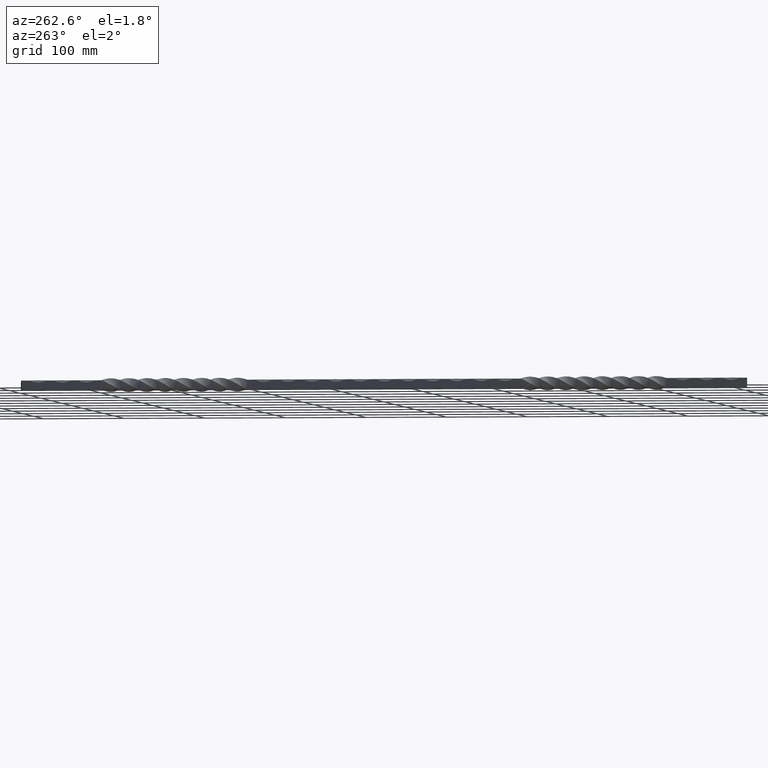
[diagram: clean part render]
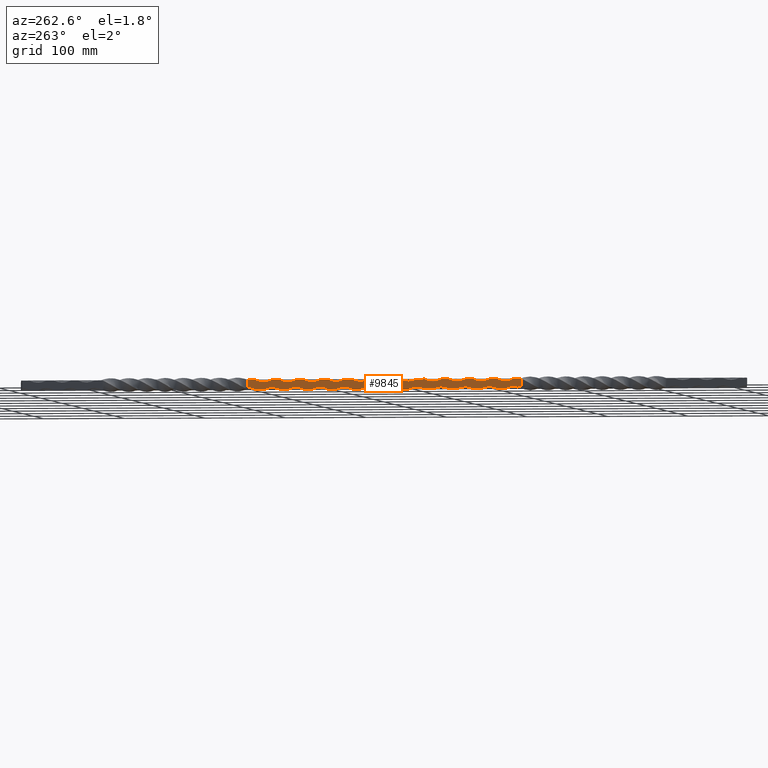
[diagram: same view with one face highlighted and labeled with its STEP entity id]
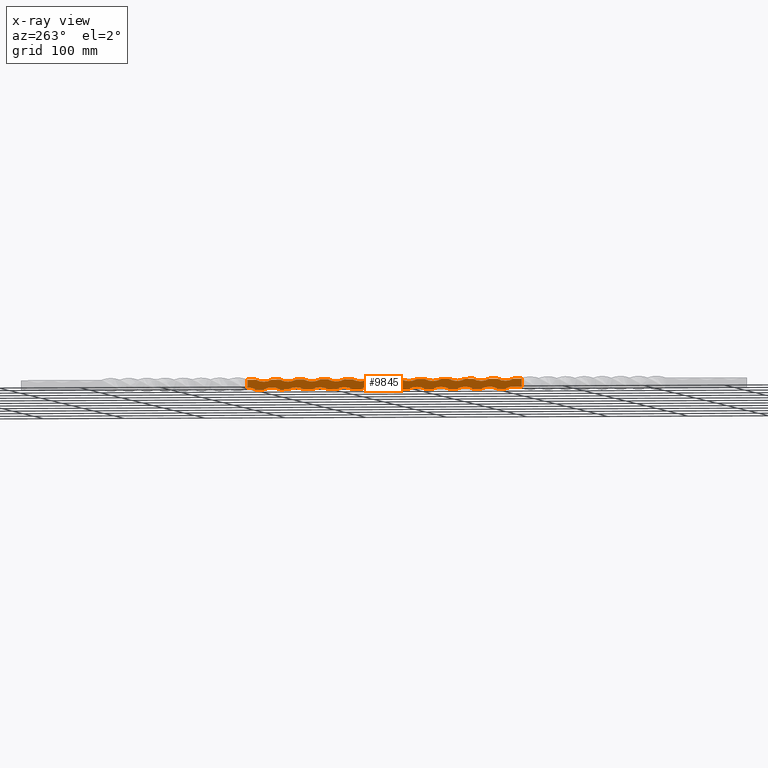
[diagram: x-ray of the same camera — body ghosted, the highlighted face saturated]
A machine part, auxiliary view. The second image highlights one B-rep face of the part: STEP entity #9845.
The next image is the same camera in x-ray: the body ghosted, the highlighted face saturated — about 0% of this face is hidden behind the body in this view.
In plain terms, the highlighted planar face has unit normal (1, -0, 0).
Its self-contained STEP definition (entity closure, byte-faithful):
#56 = EDGE_CURVE ( 'NONE', #10044, #6111, #5525, .T. ) ;
#104 = EDGE_CURVE ( 'NONE', #3946, #1609, #8206, .T. ) ;
#119 = DIRECTION ( 'NONE',  ( -1.000000000000000000, 0.000000000000000000, -8.223997290526212661E-10 ) ) ;
#127 = DIRECTION ( 'NONE',  ( 8.223997463422359686E-10, -5.224578939412520671E-15, -1.000000000000000000 ) ) ;
#130 = VECTOR ( 'NONE', #2162, 1000.000000000000000 ) ;
#161 = VECTOR ( 'NONE', #4154, 1000.000000000000000 ) ;
#187 = AXIS2_PLACEMENT_3D ( 'NONE', #1752, #8763, #4424 ) ;
#253 = VERTEX_POINT ( 'NONE', #7351 ) ;
#290 = CARTESIAN_POINT ( 'NONE',  ( -6.000000006995538371, 79.99999999999997158, 5.999999997126758799 ) ) ;
#384 = AXIS2_PLACEMENT_3D ( 'NONE', #4113, #10153, #127 ) ;
#390 = ORIENTED_EDGE ( 'NONE', *, *, #8853, .F. ) ;
#431 = AXIS2_PLACEMENT_3D ( 'NONE', #9084, #10975, #4958 ) ;
#478 = VERTEX_POINT ( 'NONE', #9252 ) ;
#530 = EDGE_CURVE ( 'NONE', #613, #3887, #2408, .T. ) ;
#558 = DIRECTION ( 'NONE',  ( 8.223997463422361754E-10, 1.795949010423054375E-15, -1.000000000000000000 ) ) ;
#612 = DIRECTION ( 'NONE',  ( -1.000000000000000000, 0.000000000000000000, -8.223997290526212661E-10 ) ) ;
#613 = VERTEX_POINT ( 'NONE', #10343 ) ;
#640 = DIRECTION ( 'NONE',  ( -0.000000000000000000, -1.000000000000000000, -0.000000000000000000 ) ) ;
#651 = VECTOR ( 'NONE', #4294, 1000.000000000000000 ) ;
#698 = ORIENTED_EDGE ( 'NONE', *, *, #9775, .F. ) ;
#882 = DIRECTION ( 'NONE',  ( -0.000000000000000000, -1.000000000000000000, -0.000000000000000000 ) ) ;
#927 = VECTOR ( 'NONE', #10280, 1000.000000000000000 ) ;
#1032 = EDGE_CURVE ( 'NONE', #6638, #8643, #4417, .T. ) ;
#1035 = VERTEX_POINT ( 'NONE', #2418 ) ;
#1046 = CARTESIAN_POINT ( 'NONE',  ( -5.999999978209284102, -40.00000000000002132, -24.75000000637097486 ) ) ;
#1051 = ORIENTED_EDGE ( 'NONE', *, *, #6824, .F. ) ;
#1054 = EDGE_CURVE ( 'NONE', #9387, #1757, #1754, .T. ) ;
#1088 = ORIENTED_EDGE ( 'NONE', *, *, #10611, .T. ) ;
#1139 = CARTESIAN_POINT ( 'NONE',  ( -5.999999997126742812, 16.97056276331698754, -6.000000006995589885 ) ) ;
#1144 = AXIS2_PLACEMENT_3D ( 'NONE', #3574, #9526, #558 ) ;
#1149 = CIRCLE ( 'NONE', #9196, 21.24999999999991473 ) ;
#1154 = CARTESIAN_POINT ( 'NONE',  ( -6.000000006995539259, -130.0000000000000568, 5.999999997126766793 ) ) ;
#1174 = DIRECTION ( 'NONE',  ( 8.223997463422360720E-10, 0.000000000000000000, -1.000000000000000000 ) ) ;
#1182 = ORIENTED_EDGE ( 'NONE', *, *, #11530, .F. ) ;
#1190 = LINE ( 'NONE', #5851, #1516 ) ;
#1200 = DIRECTION ( 'NONE',  ( 1.000000000000000000, -0.000000000000000000, 8.223997290526212661E-10 ) ) ;
#1204 = EDGE_CURVE ( 'NONE', #12863, #253, #1599, .T. ) ;
#1259 = CIRCLE ( 'NONE', #5915, 21.24999999999991118 ) ;
#1287 = CARTESIAN_POINT ( 'NONE',  ( -6.000000022415535206, -120.0000000000000568, 24.74999999712667886 ) ) ;
#1339 = DIRECTION ( 'NONE',  ( 8.223997463422361754E-10, 2.612289469706261124E-15, -1.000000000000000000 ) ) ;
#1358 = LINE ( 'NONE', #4734, #11695 ) ;
#1386 = CARTESIAN_POINT ( 'NONE',  ( -5.999999997126742812, 16.97056276331698754, -6.000000006995589885 ) ) ;
#1419 = ORIENTED_EDGE ( 'NONE', *, *, #4253, .T. ) ;
#1431 = CARTESIAN_POINT ( 'NONE',  ( -5.999999997126741036, 150.0000000065581673, -6.000000006370976635 ) ) ;
#1433 = CARTESIAN_POINT ( 'NONE',  ( -6.000000006995539259, 16.97056276331698754, 5.999999997126768569 ) ) ;
#1435 = VERTEX_POINT ( 'NONE', #5710 ) ;
#1451 = EDGE_CURVE ( 'NONE', #10134, #613, #2727, .T. ) ;
#1476 = CARTESIAN_POINT ( 'NONE',  ( -5.999999978209362261, -100.0000000000000142, -24.75000000637101039 ) ) ;
#1478 = AXIS2_PLACEMENT_3D ( 'NONE', #1046, #3991, #2911 ) ;
#1516 = VECTOR ( 'NONE', #6772, 1000.000000000000000 ) ;
#1525 = VERTEX_POINT ( 'NONE', #5106 ) ;
#1599 = CIRCLE ( 'NONE', #1926, 21.24999999999992184 ) ;
#1609 = VERTEX_POINT ( 'NONE', #3432 ) ;
#1615 = CARTESIAN_POINT ( 'NONE',  ( -6.000000006995540147, 39.99999999999997868, 5.999999997126761464 ) ) ;
#1621 = EDGE_CURVE ( 'NONE', #6087, #9137, #12109, .T. ) ;
#1627 = EDGE_CURVE ( 'NONE', #11043, #11475, #5374, .T. ) ;
#1635 = DIRECTION ( 'NONE',  ( -1.000000000000000000, 0.000000000000000000, -8.223997290526212661E-10 ) ) ;
#1664 = EDGE_CURVE ( 'NONE', #6318, #8234, #10394, .T. ) ;
#1714 = EDGE_CURVE ( 'NONE', #9498, #12953, #2087, .T. ) ;
#1752 = CARTESIAN_POINT ( 'NONE',  ( -5.999999978209440421, -160.0000000000000284, -24.75000000637103525 ) ) ;
#1754 = CIRCLE ( 'NONE', #10992, 21.24999999999992184 ) ;
#1757 = VERTEX_POINT ( 'NONE', #11288 ) ;
#1836 = CARTESIAN_POINT ( 'NONE',  ( -5.999999997126741036, 90.00000000655801102, -6.000000006371007721 ) ) ;
#1859 = CIRCLE ( 'NONE', #4339, 21.24999999999991473 ) ;
#1901 = LINE ( 'NONE', #8338, #5814 ) ;
#1926 = AXIS2_PLACEMENT_3D ( 'NONE', #9005, #5152, #11097 ) ;
#1997 = ORIENTED_EDGE ( 'NONE', *, *, #10972, .F. ) ;
#2034 = CARTESIAN_POINT ( 'NONE',  ( -5.999999997126741036, 6.557801177087263511E-09, -6.000000006371054795 ) ) ;
#2071 = VECTOR ( 'NONE', #3409, 1000.000000000000000 ) ;
#2087 = CIRCLE ( 'NONE', #11565, 21.24999999999991118 ) ;
#2112 = CARTESIAN_POINT ( 'NONE',  ( -5.999999978209166862, 49.99999999999997158, -24.75000000637092867 ) ) ;
#2162 = DIRECTION ( 'NONE',  ( -0.000000000000000000, -1.000000000000000000, -0.000000000000000000 ) ) ;
#2223 = ORIENTED_EDGE ( 'NONE', *, *, #10299, .F. ) ;
#2346 = VECTOR ( 'NONE', #5626, 1000.000000000000000 ) ;
#2403 = EDGE_CURVE ( 'NONE', #9498, #11475, #1901, .T. ) ;
#2408 = LINE ( 'NONE', #12223, #3186 ) ;
#2418 = CARTESIAN_POINT ( 'NONE',  ( -5.999999993629240080, -20.00000000000001776, -6.000000006371043249 ) ) ;
#2533 = ORIENTED_EDGE ( 'NONE', *, *, #56, .T. ) ;
#2601 = CARTESIAN_POINT ( 'NONE',  ( -6.000000022415535206, -150.0000000000000284, 24.74999999712668242 ) ) ;
#2611 = CARTESIAN_POINT ( 'NONE',  ( -5.999999978209049623, 139.9999999999999716, -24.75000000637088249 ) ) ;
#2637 = CARTESIAN_POINT ( 'NONE',  ( -5.999999995194782443, -164.9999999999996589, -4.096610454048146721 ) ) ;
#2651 = ORIENTED_EDGE ( 'NONE', *, *, #11463, .F. ) ;
#2692 = CARTESIAN_POINT ( 'NONE',  ( -6.000000006995541035, -80.00000000000001421, 5.999999997126766793 ) ) ;
#2708 = CARTESIAN_POINT ( 'NONE',  ( -6.000000006995539259, 169.9999999999999716, 5.999999997126768569 ) ) ;
#2727 = CIRCLE ( 'NONE', #9061, 21.24999999999992184 ) ;
#2744 = ORIENTED_EDGE ( 'NONE', *, *, #1451, .F. ) ;
#2786 = VERTEX_POINT ( 'NONE', #7732 ) ;
#2792 = VERTEX_POINT ( 'NONE', #2637 ) ;
#2871 = VERTEX_POINT ( 'NONE', #4934 ) ;
#2911 = DIRECTION ( 'NONE',  ( 8.223997463422361754E-10, 0.000000000000000000, -1.000000000000000000 ) ) ;
#2967 = VERTEX_POINT ( 'NONE', #11274 ) ;
#2998 = VERTEX_POINT ( 'NONE', #6198 ) ;
#3010 = VERTEX_POINT ( 'NONE', #5241 ) ;
#3081 = DIRECTION ( 'NONE',  ( -0.000000000000000000, -1.000000000000000000, -0.000000000000000000 ) ) ;
#3126 = DIRECTION ( 'NONE',  ( 8.223997463422359686E-10, -5.224578939412520671E-15, -1.000000000000000000 ) ) ;
#3133 = ORIENTED_EDGE ( 'NONE', *, *, #4799, .F. ) ;
#3186 = VECTOR ( 'NONE', #6356, 1000.000000000000000 ) ;
#3201 = VERTEX_POINT ( 'NONE', #2034 ) ;
#3234 = EDGE_CURVE ( 'NONE', #2786, #1435, #6585, .T. ) ;
#3316 = CARTESIAN_POINT ( 'NONE',  ( -5.999999993629201001, 9.999999999999980460, -6.000000006371028149 ) ) ;
#3365 = CARTESIAN_POINT ( 'NONE',  ( -5.999999997126741036, -59.99999999344233714, -6.000000006371085881 ) ) ;
#3409 = DIRECTION ( 'NONE',  ( -0.000000000000000000, -1.000000000000000000, -0.000000000000000000 ) ) ;
#3432 = CARTESIAN_POINT ( 'NONE',  ( -6.000000006995538371, 109.9999999999999716, 5.999999997126757023 ) ) ;
#3486 = EDGE_CURVE ( 'NONE', #12070, #9387, #10984, .T. ) ;
#3574 = CARTESIAN_POINT ( 'NONE',  ( -5.999999978209245022, -10.00000000000002487, -24.75000000637096065 ) ) ;
#3596 = EDGE_LOOP ( 'NONE', ( #1997, #10210, #9760, #6856, #12129, #7724, #6258, #390, #5331, #4366, #9149, #5382, #1051, #4666, #8829, #6580, #10459, #2744, #4830, #698, #3133, #8042, #5319, #3813, #7268, #13003, #3720, #12424, #10285, #7205, #2651, #10838, #4120, #1088, #5269, #2533, #5564, #9154, #1182, #12322, #9771, #8380, #2223, #11356, #3865, #1419, #12305, #12490, #8264 ) ) ;
#3603 = CIRCLE ( 'NONE', #1144, 21.24999999999991473 ) ;
#3607 = VERTEX_POINT ( 'NONE', #4649 ) ;
#3720 = ORIENTED_EDGE ( 'NONE', *, *, #1714, .F. ) ;
#3749 = LINE ( 'NONE', #3932, #11427 ) ;
#3754 = EDGE_CURVE ( 'NONE', #10044, #7766, #9093, .T. ) ;
#3813 = ORIENTED_EDGE ( 'NONE', *, *, #1054, .F. ) ;
#3860 = CARTESIAN_POINT ( 'NONE',  ( -6.000000006995539259, 159.9999999999999716, 5.999999997126756135 ) ) ;
#3865 = ORIENTED_EDGE ( 'NONE', *, *, #11593, .F. ) ;
#3878 = EDGE_CURVE ( 'NONE', #9137, #3607, #7207, .T. ) ;
#3887 = VERTEX_POINT ( 'NONE', #1615 ) ;
#3915 = CIRCLE ( 'NONE', #12386, 21.24999999999991473 ) ;
#3932 = CARTESIAN_POINT ( 'NONE',  ( -5.999999997126742812, 16.97056276331698754, -6.000000006995589885 ) ) ;
#3946 = VERTEX_POINT ( 'NONE', #6641 ) ;
#3991 = DIRECTION ( 'NONE',  ( -1.000000000000000000, 0.000000000000000000, -8.223997290526212661E-10 ) ) ;
#3997 = EDGE_CURVE ( 'NONE', #3010, #6402, #9248, .T. ) ;
#4000 = VECTOR ( 'NONE', #12826, 1000.000000000000000 ) ;
#4026 = CARTESIAN_POINT ( 'NONE',  ( -5.999999993629357320, -110.0000000000000142, -6.000000006371090322 ) ) ;
#4041 = CARTESIAN_POINT ( 'NONE',  ( -5.999999997126742812, 16.97056276331698754, -6.000000006995589885 ) ) ;
#4113 = CARTESIAN_POINT ( 'NONE',  ( -6.000000022415533429, 119.9999999999999716, 24.74999999712666821 ) ) ;
#4120 = ORIENTED_EDGE ( 'NONE', *, *, #9041, .F. ) ;
#4121 = DIRECTION ( 'NONE',  ( -1.000000000000000000, 0.000000000000000000, -8.223997290526212661E-10 ) ) ;
#4139 = EDGE_CURVE ( 'NONE', #11043, #2871, #3749, .T. ) ;
#4150 = EDGE_CURVE ( 'NONE', #478, #1525, #4692, .T. ) ;
#4154 = DIRECTION ( 'NONE',  ( -0.000000000000000000, -1.000000000000000000, -0.000000000000000000 ) ) ;
#4165 = CARTESIAN_POINT ( 'NONE',  ( -5.999999993629279160, -50.00000000000001421, -6.000000006371059236 ) ) ;
#4253 = EDGE_CURVE ( 'NONE', #9476, #7193, #9702, .T. ) ;
#4283 = CARTESIAN_POINT ( 'NONE',  ( -5.999999978209088702, 109.9999999999999716, -24.75000000637089670 ) ) ;
#4293 = CARTESIAN_POINT ( 'NONE',  ( -5.999999978209036300, -169.9999999999999432, -24.75000000637087183 ) ) ;
#4294 = DIRECTION ( 'NONE',  ( -0.000000000000000000, -1.000000000000000000, -0.000000000000000000 ) ) ;
#4305 = DIRECTION ( 'NONE',  ( -0.000000000000000000, -1.000000000000000000, -0.000000000000000000 ) ) ;
#4339 = AXIS2_PLACEMENT_3D ( 'NONE', #11868, #4784, #11737 ) ;
#4366 = ORIENTED_EDGE ( 'NONE', *, *, #9502, .F. ) ;
#4369 = VECTOR ( 'NONE', #8451, 1000.000000000000000 ) ;
#4417 = LINE ( 'NONE', #1386, #2071 ) ;
#4424 = DIRECTION ( 'NONE',  ( 8.223997463422361754E-10, -1.306144734853130562E-15, -1.000000000000000000 ) ) ;
#4505 = VERTEX_POINT ( 'NONE', #7884 ) ;
#4519 = DIRECTION ( 'NONE',  ( -0.000000000000000000, -1.000000000000000000, -0.000000000000000000 ) ) ;
#4553 = CARTESIAN_POINT ( 'NONE',  ( -6.000000006995539259, 16.97056276331698754, 5.999999997126768569 ) ) ;
#4576 = DIRECTION ( 'NONE',  ( -1.000000000000000000, 0.000000000000000000, -8.223997290526212661E-10 ) ) ;
#4649 = CARTESIAN_POINT ( 'NONE',  ( -6.000000006995539259, -160.0000000000000284, 5.999999997126768569 ) ) ;
#4666 = ORIENTED_EDGE ( 'NONE', *, *, #4150, .F. ) ;
#4678 = DIRECTION ( 'NONE',  ( -0.000000000000000000, -1.000000000000000000, -0.000000000000000000 ) ) ;
#4692 = CIRCLE ( 'NONE', #6487, 21.24999999999992184 ) ;
#4725 = EDGE_CURVE ( 'NONE', #7948, #478, #11258, .T. ) ;
#4734 = CARTESIAN_POINT ( 'NONE',  ( -5.999999997126742812, 16.97056276331698754, -6.000000006995589885 ) ) ;
#4760 = CARTESIAN_POINT ( 'NONE',  ( -6.000000006995539259, 16.97056276331698754, 5.999999997126768569 ) ) ;
#4784 = DIRECTION ( 'NONE',  ( -1.000000000000000000, 0.000000000000000000, -8.223997290526212661E-10 ) ) ;
#4797 = AXIS2_PLACEMENT_3D ( 'NONE', #2601, #7490, #8640 ) ;
#4799 = EDGE_CURVE ( 'NONE', #1609, #7338, #4845, .T. ) ;
#4830 = ORIENTED_EDGE ( 'NONE', *, *, #6654, .F. ) ;
#4845 = LINE ( 'NONE', #4760, #2346 ) ;
#4914 = DIRECTION ( 'NONE',  ( -1.000000000000000000, 0.000000000000000000, -8.223997290526212661E-10 ) ) ;
#4934 = CARTESIAN_POINT ( 'NONE',  ( -5.999999997126744589, 120.0000000065580963, -6.000000006370992622 ) ) ;
#4958 = DIRECTION ( 'NONE',  ( 8.223997463422359686E-10, -5.224578939412520671E-15, -1.000000000000000000 ) ) ;
#5057 = CARTESIAN_POINT ( 'NONE',  ( -5.999999997126744589, -29.99999999344226609, -6.000000006371070782 ) ) ;
#5069 = CARTESIAN_POINT ( 'NONE',  ( -6.000000022415534318, -2.775557561562891351E-14, 24.74999999712667531 ) ) ;
#5106 = CARTESIAN_POINT ( 'NONE',  ( -6.000000006995538371, -10.00000000000002487, 5.999999997126762352 ) ) ;
#5118 = VERTEX_POINT ( 'NONE', #3316 ) ;
#5152 = DIRECTION ( 'NONE',  ( -1.000000000000000000, 0.000000000000000000, -8.223997290526212661E-10 ) ) ;
#5182 = VERTEX_POINT ( 'NONE', #290 ) ;
#5241 = CARTESIAN_POINT ( 'NONE',  ( -5.999999993629083761, 99.99999999999997158, -6.000000006370981076 ) ) ;
#5245 = EDGE_CURVE ( 'NONE', #3887, #7948, #5456, .T. ) ;
#5269 = ORIENTED_EDGE ( 'NONE', *, *, #3754, .F. ) ;
#5271 = VERTEX_POINT ( 'NONE', #11486 ) ;
#5274 = CARTESIAN_POINT ( 'NONE',  ( -5.999999997126744589, 30.00000000655787957, -6.000000006371038808 ) ) ;
#5312 = DIRECTION ( 'NONE',  ( 8.223997463422359686E-10, 0.000000000000000000, -1.000000000000000000 ) ) ;
#5319 = ORIENTED_EDGE ( 'NONE', *, *, #11380, .F. ) ;
#5328 = DIRECTION ( 'NONE',  ( -8.223997290526211627E-10, 0.000000000000000000, 1.000000000000000000 ) ) ;
#5331 = ORIENTED_EDGE ( 'NONE', *, *, #7926, .F. ) ;
#5374 = CIRCLE ( 'NONE', #11742, 21.24999999999991473 ) ;
#5380 = DIRECTION ( 'NONE',  ( -1.000000000000000000, 0.000000000000000000, -8.223997290526212661E-10 ) ) ;
#5382 = ORIENTED_EDGE ( 'NONE', *, *, #1204, .F. ) ;
#5401 = DIRECTION ( 'NONE',  ( -1.000000000000000000, 0.000000000000000000, -8.223997290526212661E-10 ) ) ;
#5415 = CARTESIAN_POINT ( 'NONE',  ( -6.000000022415533429, 149.9999999999999716, 24.74999999712666821 ) ) ;
#5439 = CARTESIAN_POINT ( 'NONE',  ( -5.999999978209127782, 79.99999999999997158, -24.75000000637091091 ) ) ;
#5456 = CIRCLE ( 'NONE', #8999, 21.24999999999992184 ) ;
#5500 = AXIS2_PLACEMENT_3D ( 'NONE', #7121, #1200, #8128 ) ;
#5525 = LINE ( 'NONE', #7220, #161 ) ;
#5559 = CARTESIAN_POINT ( 'NONE',  ( -5.999999997126741036, 60.00000000655794707, -6.000000006371023709 ) ) ;
#5560 = CARTESIAN_POINT ( 'NONE',  ( -5.999999999998386180, 169.9999999999633928, -3.500000006370936667 ) ) ;
#5564 = ORIENTED_EDGE ( 'NONE', *, *, #12122, .F. ) ;
#5624 = DIRECTION ( 'NONE',  ( 8.223997463422361754E-10, 0.000000000000000000, -1.000000000000000000 ) ) ;
#5626 = DIRECTION ( 'NONE',  ( -0.000000000000000000, -1.000000000000000000, -0.000000000000000000 ) ) ;
#5644 = CIRCLE ( 'NONE', #187, 21.24999999999991473 ) ;
#5710 = CARTESIAN_POINT ( 'NONE',  ( -6.000000006995539259, -170.0000000136172105, 5.999999997126768569 ) ) ;
#5727 = CARTESIAN_POINT ( 'NONE',  ( -6.000000006995539259, 16.97056276331698754, 5.999999997126768569 ) ) ;
#5814 = VECTOR ( 'NONE', #4678, 1000.000000000000000 ) ;
#5851 = CARTESIAN_POINT ( 'NONE',  ( -5.999999997126742812, 16.97056276331698754, -6.000000006995589885 ) ) ;
#5914 = VECTOR ( 'NONE', #5328, 1000.000000000000000 ) ;
#5915 = AXIS2_PLACEMENT_3D ( 'NONE', #11563, #1635, #12576 ) ;
#5953 = VECTOR ( 'NONE', #6090, 1000.000000000000000 ) ;
#6058 = DIRECTION ( 'NONE',  ( 8.223997463422359686E-10, 0.000000000000000000, -1.000000000000000000 ) ) ;
#6087 = VERTEX_POINT ( 'NONE', #1154 ) ;
#6090 = DIRECTION ( 'NONE',  ( 0.000000000000000000, -0.000000000000000000, 1.000000000000000000 ) ) ;
#6111 = VERTEX_POINT ( 'NONE', #5274 ) ;
#6120 = CARTESIAN_POINT ( 'NONE',  ( -6.000000006995538371, 19.99999999999997513, 5.999999997126761464 ) ) ;
#6140 = CARTESIAN_POINT ( 'NONE',  ( -6.000000006995539259, 16.97056276331698754, 5.999999997126768569 ) ) ;
#6178 = CARTESIAN_POINT ( 'NONE',  ( -6.000000006995539259, 16.97056276331698754, 5.999999997126768569 ) ) ;
#6198 = CARTESIAN_POINT ( 'NONE',  ( -6.000000006995539259, -100.0000000000000142, 5.999999997126766793 ) ) ;
#6258 = ORIENTED_EDGE ( 'NONE', *, *, #7582, .F. ) ;
#6264 = VECTOR ( 'NONE', #12155, 1000.000000000000000 ) ;
#6288 = CIRCLE ( 'NONE', #8200, 21.24999999999992184 ) ;
#6291 = CARTESIAN_POINT ( 'NONE',  ( -6.000000006995540147, -20.00000000000001776, 5.999999997126764129 ) ) ;
#6294 = DIRECTION ( 'NONE',  ( -1.000000000000000000, 0.000000000000000000, -8.223997290526212661E-10 ) ) ;
#6318 = VERTEX_POINT ( 'NONE', #9484 ) ;
#6356 = DIRECTION ( 'NONE',  ( -0.000000000000000000, -1.000000000000000000, -0.000000000000000000 ) ) ;
#6380 = DIRECTION ( 'NONE',  ( 8.223997463422363822E-10, 0.000000000000000000, -1.000000000000000000 ) ) ;
#6402 = VERTEX_POINT ( 'NONE', #1836 ) ;
#6487 = AXIS2_PLACEMENT_3D ( 'NONE', #5069, #8977, #6058 ) ;
#6490 = EDGE_CURVE ( 'NONE', #4505, #8751, #1358, .T. ) ;
#6580 = ORIENTED_EDGE ( 'NONE', *, *, #5245, .F. ) ;
#6585 = LINE ( 'NONE', #12102, #5953 ) ;
#6634 = DIRECTION ( 'NONE',  ( 8.223997463422359686E-10, -5.224578939412520671E-15, -1.000000000000000000 ) ) ;
#6638 = VERTEX_POINT ( 'NONE', #4165 ) ;
#6641 = CARTESIAN_POINT ( 'NONE',  ( -6.000000006995539259, 129.9999999999999716, 5.999999997126757023 ) ) ;
#6654 = EDGE_CURVE ( 'NONE', #5182, #10134, #11845, .T. ) ;
#6657 = LINE ( 'NONE', #8815, #4000 ) ;
#6693 = DIRECTION ( 'NONE',  ( -0.000000000000000000, -1.000000000000000000, -0.000000000000000000 ) ) ;
#6772 = DIRECTION ( 'NONE',  ( -0.000000000000000000, -1.000000000000000000, -0.000000000000000000 ) ) ;
#6824 = EDGE_CURVE ( 'NONE', #1525, #12863, #10133, .T. ) ;
#6856 = ORIENTED_EDGE ( 'NONE', *, *, #3878, .F. ) ;
#6886 = CARTESIAN_POINT ( 'NONE',  ( -6.000000006995540147, 69.99999999999998579, 5.999999997126759688 ) ) ;
#6914 = EDGE_CURVE ( 'NONE', #5118, #3201, #1190, .T. ) ;
#7012 = VECTOR ( 'NONE', #6693, 1000.000000000000000 ) ;
#7116 = CIRCLE ( 'NONE', #431, 21.24999999999992184 ) ;
#7121 = CARTESIAN_POINT ( 'NONE',  ( -5.999999997126742812, 16.97056276331698754, -6.000000006995589885 ) ) ;
#7173 = AXIS2_PLACEMENT_3D ( 'NONE', #8729, #4914, #8530 ) ;
#7181 = LINE ( 'NONE', #7341, #5914 ) ;
#7193 = VERTEX_POINT ( 'NONE', #10194 ) ;
#7205 = ORIENTED_EDGE ( 'NONE', *, *, #4139, .T. ) ;
#7207 = CIRCLE ( 'NONE', #4797, 21.24999999999992184 ) ;
#7220 = CARTESIAN_POINT ( 'NONE',  ( -5.999999997126742812, 16.97056276331698754, -6.000000006995589885 ) ) ;
#7223 = CIRCLE ( 'NONE', #1478, 21.24999999999991473 ) ;
#7268 = ORIENTED_EDGE ( 'NONE', *, *, #3486, .F. ) ;
#7338 = VERTEX_POINT ( 'NONE', #12841 ) ;
#7341 = CARTESIAN_POINT ( 'NONE',  ( -5.999999997126742812, 169.9999999999999716, -6.000000006995589885 ) ) ;
#7351 = CARTESIAN_POINT ( 'NONE',  ( -6.000000006995538371, -40.00000000000002132, 5.999999997126764129 ) ) ;
#7378 = DIRECTION ( 'NONE',  ( 8.223997463422361754E-10, 0.000000000000000000, -1.000000000000000000 ) ) ;
#7403 = DIRECTION ( 'NONE',  ( -1.000000000000000000, 0.000000000000000000, -8.223997290526212661E-10 ) ) ;
#7461 = DIRECTION ( 'NONE',  ( -1.000000000000000000, 0.000000000000000000, -8.223997290526212661E-10 ) ) ;
#7490 = DIRECTION ( 'NONE',  ( -1.000000000000000000, 0.000000000000000000, -8.223997290526212661E-10 ) ) ;
#7582 = EDGE_CURVE ( 'NONE', #2998, #9344, #8404, .T. ) ;
#7724 = ORIENTED_EDGE ( 'NONE', *, *, #8599, .F. ) ;
#7732 = CARTESIAN_POINT ( 'NONE',  ( -5.999999978209036300, -169.9999999999999716, -3.500000006370955319 ) ) ;
#7761 = CARTESIAN_POINT ( 'NONE',  ( -5.999999993629161921, 39.99999999999997868, -6.000000006371012162 ) ) ;
#7766 = VERTEX_POINT ( 'NONE', #5559 ) ;
#7884 = CARTESIAN_POINT ( 'NONE',  ( -5.999999993629318240, -80.00000000000001421, -6.000000006371075223 ) ) ;
#7926 = EDGE_CURVE ( 'NONE', #5271, #12499, #6657, .T. ) ;
#7948 = VERTEX_POINT ( 'NONE', #6120 ) ;
#8021 = AXIS2_PLACEMENT_3D ( 'NONE', #1287, #612, #9613 ) ;
#8033 = CARTESIAN_POINT ( 'NONE',  ( -6.000000022415534318, 59.99999999999997158, 24.74999999712667176 ) ) ;
#8042 = ORIENTED_EDGE ( 'NONE', *, *, #104, .F. ) ;
#8128 = DIRECTION ( 'NONE',  ( 8.223997290526212661E-10, 0.000000000000000000, -1.000000000000000000 ) ) ;
#8200 = AXIS2_PLACEMENT_3D ( 'NONE', #11064, #119, #11147 ) ;
#8206 = CIRCLE ( 'NONE', #384, 21.24999999999992184 ) ;
#8234 = VERTEX_POINT ( 'NONE', #8798 ) ;
#8264 = ORIENTED_EDGE ( 'NONE', *, *, #11059, .F. ) ;
#8305 = VECTOR ( 'NONE', #11849, 1000.000000000000000 ) ;
#8338 = CARTESIAN_POINT ( 'NONE',  ( -5.999999997126742812, 16.97056276331698754, -6.000000006995589885 ) ) ;
#8374 = AXIS2_PLACEMENT_3D ( 'NONE', #4293, #7403, #11243 ) ;
#8380 = ORIENTED_EDGE ( 'NONE', *, *, #1032, .T. ) ;
#8404 = LINE ( 'NONE', #6140, #11836 ) ;
#8451 = DIRECTION ( 'NONE',  ( -0.000000000000000000, -1.000000000000000000, -0.000000000000000000 ) ) ;
#8490 = LINE ( 'NONE', #1139, #130 ) ;
#8530 = DIRECTION ( 'NONE',  ( 8.223997463422361754E-10, -1.306144734853130562E-15, -1.000000000000000000 ) ) ;
#8576 = VECTOR ( 'NONE', #11546, 1000.000000000000000 ) ;
#8599 = EDGE_CURVE ( 'NONE', #9344, #6087, #9946, .T. ) ;
#8616 = CIRCLE ( 'NONE', #12539, 21.24999999999992184 ) ;
#8640 = DIRECTION ( 'NONE',  ( 8.223997463422359686E-10, -5.224578939412520671E-15, -1.000000000000000000 ) ) ;
#8643 = VERTEX_POINT ( 'NONE', #3365 ) ;
#8700 = CARTESIAN_POINT ( 'NONE',  ( -6.000000022415534318, 29.99999999999997158, 24.74999999712667176 ) ) ;
#8710 = EDGE_CURVE ( 'NONE', #6318, #7193, #12600, .T. ) ;
#8727 = EDGE_CURVE ( 'NONE', #1035, #11756, #9329, .T. ) ;
#8729 = CARTESIAN_POINT ( 'NONE',  ( -5.999999978209401341, -130.0000000000000568, -24.75000000637102460 ) ) ;
#8751 = VERTEX_POINT ( 'NONE', #10925 ) ;
#8763 = DIRECTION ( 'NONE',  ( -1.000000000000000000, 0.000000000000000000, -8.223997290526212661E-10 ) ) ;
#8798 = CARTESIAN_POINT ( 'NONE',  ( -5.999999997126741036, -149.9999999934425432, -6.000000006371132955 ) ) ;
#8815 = CARTESIAN_POINT ( 'NONE',  ( -6.000000006995539259, 16.97056276331698754, 5.999999997126768569 ) ) ;
#8829 = ORIENTED_EDGE ( 'NONE', *, *, #4725, .F. ) ;
#8853 = EDGE_CURVE ( 'NONE', #12499, #2998, #7116, .T. ) ;
#8875 = DIRECTION ( 'NONE',  ( -0.000000000000000000, -1.000000000000000000, -0.000000000000000000 ) ) ;
#8977 = DIRECTION ( 'NONE',  ( -1.000000000000000000, 0.000000000000000000, -8.223997290526212661E-10 ) ) ;
#8999 = AXIS2_PLACEMENT_3D ( 'NONE', #8700, #4576, #10526 ) ;
#9005 = CARTESIAN_POINT ( 'NONE',  ( -6.000000022415534318, -30.00000000000002842, 24.74999999712667531 ) ) ;
#9041 = EDGE_CURVE ( 'NONE', #9595, #6402, #1149, .T. ) ;
#9061 = AXIS2_PLACEMENT_3D ( 'NONE', #8033, #5401, #5312 ) ;
#9077 = AXIS2_PLACEMENT_3D ( 'NONE', #2112, #4121, #1174 ) ;
#9084 = CARTESIAN_POINT ( 'NONE',  ( -6.000000022415535206, -90.00000000000002842, 24.74999999712667886 ) ) ;
#9093 = CIRCLE ( 'NONE', #9077, 21.24999999999991829 ) ;
#9137 = VERTEX_POINT ( 'NONE', #11606 ) ;
#9149 = ORIENTED_EDGE ( 'NONE', *, *, #12961, .F. ) ;
#9154 = ORIENTED_EDGE ( 'NONE', *, *, #6914, .T. ) ;
#9196 = AXIS2_PLACEMENT_3D ( 'NONE', #5439, #7461, #7378 ) ;
#9248 = LINE ( 'NONE', #10895, #8305 ) ;
#9252 = CARTESIAN_POINT ( 'NONE',  ( -6.000000006995540147, 9.999999999999980460, 5.999999997126762352 ) ) ;
#9257 = DIRECTION ( 'NONE',  ( -0.000000000000000000, -1.000000000000000000, -0.000000000000000000 ) ) ;
#9329 = LINE ( 'NONE', #4041, #12291 ) ;
#9344 = VERTEX_POINT ( 'NONE', #9813 ) ;
#9387 = VERTEX_POINT ( 'NONE', #3860 ) ;
#9469 = AXIS2_PLACEMENT_3D ( 'NONE', #4283, #6294, #1339 ) ;
#9476 = VERTEX_POINT ( 'NONE', #4026 ) ;
#9484 = CARTESIAN_POINT ( 'NONE',  ( -5.999999993629396400, -140.0000000000000284, -6.000000006371106309 ) ) ;
#9498 = VERTEX_POINT ( 'NONE', #11040 ) ;
#9502 = EDGE_CURVE ( 'NONE', #2967, #5271, #8616, .T. ) ;
#9526 = DIRECTION ( 'NONE',  ( -1.000000000000000000, 0.000000000000000000, -8.223997290526212661E-10 ) ) ;
#9595 = VERTEX_POINT ( 'NONE', #10292 ) ;
#9613 = DIRECTION ( 'NONE',  ( 8.223997463422359686E-10, -5.224578939412520671E-15, -1.000000000000000000 ) ) ;
#9634 = CARTESIAN_POINT ( 'NONE',  ( -6.000000006995539259, 16.97056276331698754, 5.999999997126768569 ) ) ;
#9652 = CARTESIAN_POINT ( 'NONE',  ( -6.000000006995539259, 16.97056276331698754, 5.999999997126768569 ) ) ;
#9702 = LINE ( 'NONE', #11148, #6264 ) ;
#9719 = CIRCLE ( 'NONE', #8374, 21.24999999999991473 ) ;
#9760 = ORIENTED_EDGE ( 'NONE', *, *, #11757, .F. ) ;
#9771 = ORIENTED_EDGE ( 'NONE', *, *, #10527, .F. ) ;
#9775 = EDGE_CURVE ( 'NONE', #7338, #5182, #6288, .T. ) ;
#9813 = CARTESIAN_POINT ( 'NONE',  ( -6.000000006995541035, -110.0000000000000426, 5.999999997126766793 ) ) ;
#9845 = ADVANCED_FACE ( 'NONE', ( #10998 ), #12118, .F. ) ;
#9925 = DIRECTION ( 'NONE',  ( -1.000000000000000000, 0.000000000000000000, -8.223997290526212661E-10 ) ) ;
#9946 = CIRCLE ( 'NONE', #8021, 21.24999999999992184 ) ;
#10030 = DIRECTION ( 'NONE',  ( -1.000000000000000000, 0.000000000000000000, -8.223997290526212661E-10 ) ) ;
#10044 = VERTEX_POINT ( 'NONE', #7761 ) ;
#10133 = LINE ( 'NONE', #4553, #8576 ) ;
#10134 = VERTEX_POINT ( 'NONE', #6886 ) ;
#10153 = DIRECTION ( 'NONE',  ( -1.000000000000000000, 0.000000000000000000, -8.223997290526212661E-10 ) ) ;
#10194 = CARTESIAN_POINT ( 'NONE',  ( -5.999999997126744589, -119.9999999934425006, -6.000000006371116967 ) ) ;
#10210 = ORIENTED_EDGE ( 'NONE', *, *, #3234, .T. ) ;
#10280 = DIRECTION ( 'NONE',  ( -0.000000000000000000, -1.000000000000000000, -0.000000000000000000 ) ) ;
#10285 = ORIENTED_EDGE ( 'NONE', *, *, #1627, .F. ) ;
#10291 = CARTESIAN_POINT ( 'NONE',  ( -5.999999997126742812, 16.97056276331698754, -6.000000006995589885 ) ) ;
#10292 = CARTESIAN_POINT ( 'NONE',  ( -5.999999993629122841, 69.99999999999998579, -6.000000006370997063 ) ) ;
#10299 = EDGE_CURVE ( 'NONE', #4505, #8643, #1259, .T. ) ;
#10343 = CARTESIAN_POINT ( 'NONE',  ( -6.000000006995538371, 49.99999999999997158, 5.999999997126759688 ) ) ;
#10394 = LINE ( 'NONE', #10291, #651 ) ;
#10420 = CARTESIAN_POINT ( 'NONE',  ( -5.999999993629045569, 129.9999999999999716, -6.000000006370965089 ) ) ;
#10459 = ORIENTED_EDGE ( 'NONE', *, *, #530, .F. ) ;
#10526 = DIRECTION ( 'NONE',  ( 8.223997463422359686E-10, 0.000000000000000000, -1.000000000000000000 ) ) ;
#10527 = EDGE_CURVE ( 'NONE', #6638, #11756, #7223, .T. ) ;
#10611 = EDGE_CURVE ( 'NONE', #9595, #7766, #8490, .T. ) ;
#10770 = LINE ( 'NONE', #5727, #7012 ) ;
#10838 = ORIENTED_EDGE ( 'NONE', *, *, #3997, .T. ) ;
#10895 = CARTESIAN_POINT ( 'NONE',  ( -5.999999997126742812, 16.97056276331698754, -6.000000006995589885 ) ) ;
#10917 = VECTOR ( 'NONE', #3081, 1000.000000000000000 ) ;
#10925 = CARTESIAN_POINT ( 'NONE',  ( -5.999999997126741036, -89.99999999344241530, -6.000000006371101868 ) ) ;
#10972 = EDGE_CURVE ( 'NONE', #2786, #2792, #9719, .T. ) ;
#10975 = DIRECTION ( 'NONE',  ( -1.000000000000000000, 0.000000000000000000, -8.223997290526212661E-10 ) ) ;
#10984 = LINE ( 'NONE', #12443, #12066 ) ;
#10992 = AXIS2_PLACEMENT_3D ( 'NONE', #5415, #12627, #6634 ) ;
#10998 = FACE_OUTER_BOUND ( 'NONE', #3596, .T. ) ;
#11040 = CARTESIAN_POINT ( 'NONE',  ( -5.999999993628982509, 159.9999999999999716, -6.000000006370866501 ) ) ;
#11043 = VERTEX_POINT ( 'NONE', #10420 ) ;
#11059 = EDGE_CURVE ( 'NONE', #2792, #8234, #5644, .T. ) ;
#11064 = CARTESIAN_POINT ( 'NONE',  ( -6.000000022415533429, 89.99999999999997158, 24.74999999712667176 ) ) ;
#11097 = DIRECTION ( 'NONE',  ( 8.223997463422359686E-10, 0.000000000000000000, -1.000000000000000000 ) ) ;
#11111 = LINE ( 'NONE', #9652, #12985 ) ;
#11147 = DIRECTION ( 'NONE',  ( 8.223997463422359686E-10, -5.224578939412520671E-15, -1.000000000000000000 ) ) ;
#11148 = CARTESIAN_POINT ( 'NONE',  ( -5.999999997126742812, 16.97056276331698754, -6.000000006995589885 ) ) ;
#11161 = VECTOR ( 'NONE', #4519, 1000.000000000000000 ) ;
#11243 = DIRECTION ( 'NONE',  ( 8.223997463422361754E-10, 0.000000000000000000, -1.000000000000000000 ) ) ;
#11258 = LINE ( 'NONE', #1433, #4369 ) ;
#11274 = CARTESIAN_POINT ( 'NONE',  ( -6.000000006995540147, -50.00000000000001421, 5.999999997126765017 ) ) ;
#11288 = CARTESIAN_POINT ( 'NONE',  ( -6.000000006995538371, 139.9999999999999716, 5.999999997126756135 ) ) ;
#11356 = ORIENTED_EDGE ( 'NONE', *, *, #6490, .T. ) ;
#11380 = EDGE_CURVE ( 'NONE', #1757, #3946, #11585, .T. ) ;
#11427 = VECTOR ( 'NONE', #11940, 1000.000000000000000 ) ;
#11463 = EDGE_CURVE ( 'NONE', #3010, #2871, #11735, .T. ) ;
#11475 = VERTEX_POINT ( 'NONE', #1431 ) ;
#11486 = CARTESIAN_POINT ( 'NONE',  ( -6.000000006995538371, -70.00000000000001421, 5.999999997126765017 ) ) ;
#11530 = EDGE_CURVE ( 'NONE', #1035, #3201, #3603, .T. ) ;
#11546 = DIRECTION ( 'NONE',  ( -0.000000000000000000, -1.000000000000000000, -0.000000000000000000 ) ) ;
#11563 = CARTESIAN_POINT ( 'NONE',  ( -5.999999978209323181, -70.00000000000001421, -24.75000000637099262 ) ) ;
#11565 = AXIS2_PLACEMENT_3D ( 'NONE', #12379, #5380, #6380 ) ;
#11585 = LINE ( 'NONE', #12372, #927 ) ;
#11593 = EDGE_CURVE ( 'NONE', #9476, #8751, #3915, .T. ) ;
#11606 = CARTESIAN_POINT ( 'NONE',  ( -6.000000006995541035, -140.0000000000000000, 5.999999997126768569 ) ) ;
#11626 = DIRECTION ( 'NONE',  ( -1.000000000000000000, 0.000000000000000000, -8.223997290526212661E-10 ) ) ;
#11695 = VECTOR ( 'NONE', #640, 1000.000000000000000 ) ;
#11735 = CIRCLE ( 'NONE', #9469, 21.24999999999991473 ) ;
#11737 = DIRECTION ( 'NONE',  ( 8.223997463422361754E-10, 0.000000000000000000, -1.000000000000000000 ) ) ;
#11742 = AXIS2_PLACEMENT_3D ( 'NONE', #2611, #9925, #11936 ) ;
#11756 = VERTEX_POINT ( 'NONE', #5057 ) ;
#11757 = EDGE_CURVE ( 'NONE', #3607, #1435, #11111, .T. ) ;
#11836 = VECTOR ( 'NONE', #4305, 1000.000000000000000 ) ;
#11845 = LINE ( 'NONE', #6178, #10917 ) ;
#11849 = DIRECTION ( 'NONE',  ( -0.000000000000000000, -1.000000000000000000, -0.000000000000000000 ) ) ;
#11868 = CARTESIAN_POINT ( 'NONE',  ( -5.999999978209205942, 19.99999999999997158, -24.75000000637094644 ) ) ;
#11936 = DIRECTION ( 'NONE',  ( 8.223997463422361754E-10, 0.000000000000000000, -1.000000000000000000 ) ) ;
#11940 = DIRECTION ( 'NONE',  ( -0.000000000000000000, -1.000000000000000000, -0.000000000000000000 ) ) ;
#12066 = VECTOR ( 'NONE', #9257, 1000.000000000000000 ) ;
#12070 = VERTEX_POINT ( 'NONE', #2708 ) ;
#12088 = CARTESIAN_POINT ( 'NONE',  ( -6.000000022415534318, -60.00000000000002842, 24.74999999712667886 ) ) ;
#12102 = CARTESIAN_POINT ( 'NONE',  ( -6.000000000000000888, -169.9999999999999716, 0.000000000000000000 ) ) ;
#12109 = LINE ( 'NONE', #9634, #11161 ) ;
#12118 = PLANE ( 'NONE',  #5500 ) ;
#12122 = EDGE_CURVE ( 'NONE', #5118, #6111, #1859, .T. ) ;
#12129 = ORIENTED_EDGE ( 'NONE', *, *, #1621, .F. ) ;
#12155 = DIRECTION ( 'NONE',  ( -0.000000000000000000, -1.000000000000000000, -0.000000000000000000 ) ) ;
#12223 = CARTESIAN_POINT ( 'NONE',  ( -6.000000006995539259, 16.97056276331698754, 5.999999997126768569 ) ) ;
#12291 = VECTOR ( 'NONE', #882, 1000.000000000000000 ) ;
#12305 = ORIENTED_EDGE ( 'NONE', *, *, #8710, .F. ) ;
#12322 = ORIENTED_EDGE ( 'NONE', *, *, #8727, .T. ) ;
#12372 = CARTESIAN_POINT ( 'NONE',  ( -6.000000006995539259, 16.97056276331698754, 5.999999997126768569 ) ) ;
#12379 = CARTESIAN_POINT ( 'NONE',  ( -5.999999978208987450, 169.9999999999999432, -24.75000000637078301 ) ) ;
#12386 = AXIS2_PLACEMENT_3D ( 'NONE', #1476, #11626, #5624 ) ;
#12424 = ORIENTED_EDGE ( 'NONE', *, *, #2403, .T. ) ;
#12443 = CARTESIAN_POINT ( 'NONE',  ( -6.000000006995539259, 16.97056276331698754, 5.999999997126768569 ) ) ;
#12490 = ORIENTED_EDGE ( 'NONE', *, *, #1664, .T. ) ;
#12499 = VERTEX_POINT ( 'NONE', #2692 ) ;
#12539 = AXIS2_PLACEMENT_3D ( 'NONE', #12088, #10030, #3126 ) ;
#12576 = DIRECTION ( 'NONE',  ( 8.223997463422363822E-10, 1.959217102279696040E-15, -1.000000000000000000 ) ) ;
#12600 = CIRCLE ( 'NONE', #7173, 21.24999999999991473 ) ;
#12627 = DIRECTION ( 'NONE',  ( -1.000000000000000000, 0.000000000000000000, -8.223997290526212661E-10 ) ) ;
#12766 = EDGE_CURVE ( 'NONE', #12953, #12070, #7181, .T. ) ;
#12826 = DIRECTION ( 'NONE',  ( -0.000000000000000000, -1.000000000000000000, -0.000000000000000000 ) ) ;
#12841 = CARTESIAN_POINT ( 'NONE',  ( -6.000000006995539259, 99.99999999999997158, 5.999999997126758799 ) ) ;
#12863 = VERTEX_POINT ( 'NONE', #6291 ) ;
#12953 = VERTEX_POINT ( 'NONE', #5560 ) ;
#12961 = EDGE_CURVE ( 'NONE', #253, #2967, #10770, .T. ) ;
#12985 = VECTOR ( 'NONE', #8875, 1000.000000000000000 ) ;
#13003 = ORIENTED_EDGE ( 'NONE', *, *, #12766, .F. ) ;